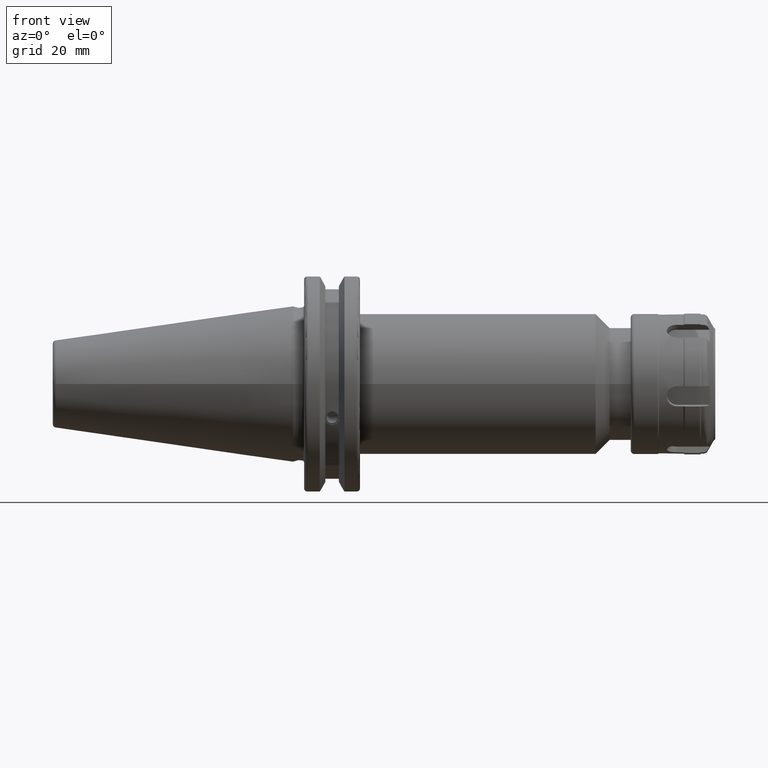
[diagram: clean part render]
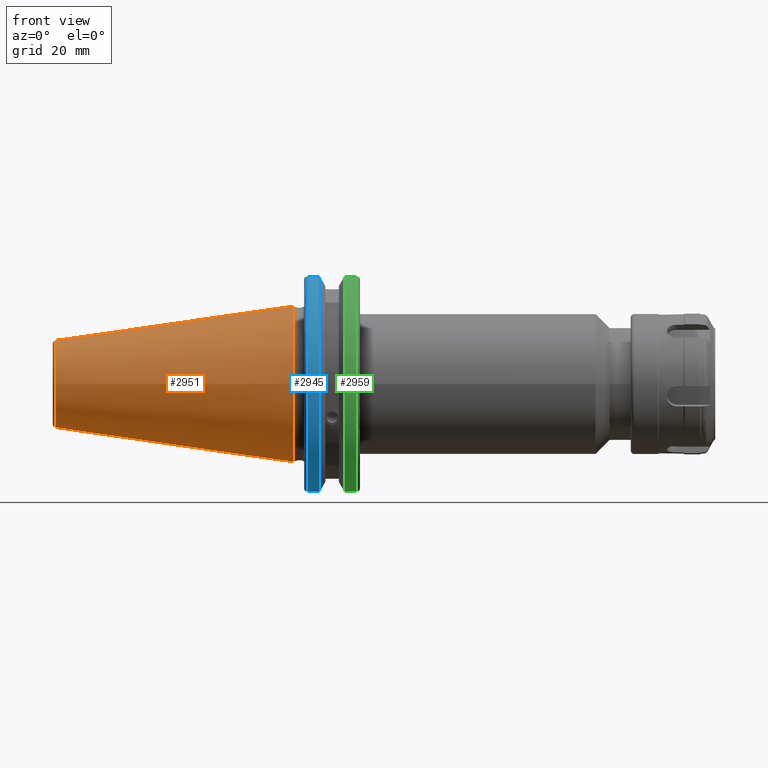
[diagram: same view with three faces highlighted in distinct colors, each labeled with its STEP entity id]
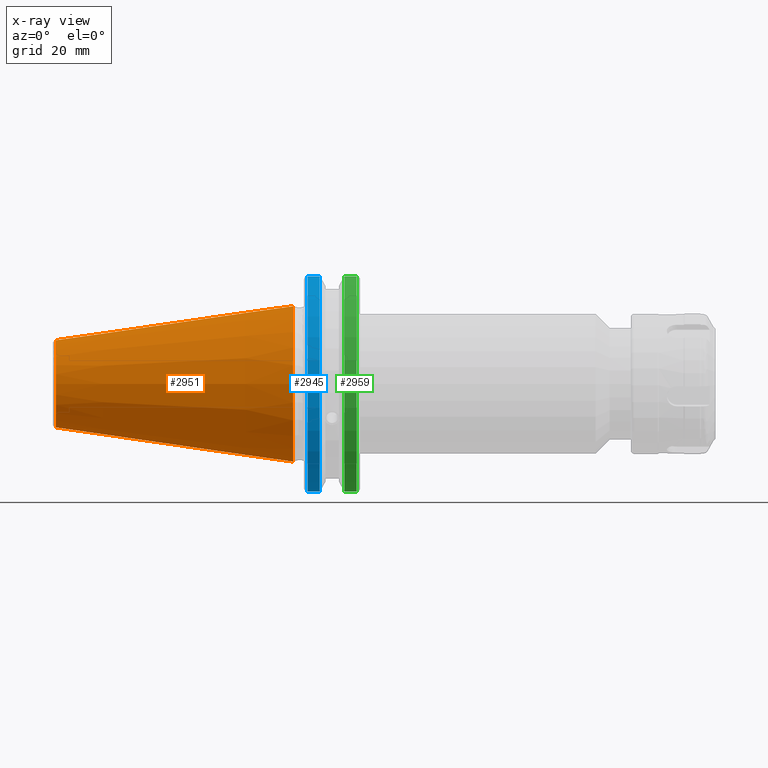
[diagram: x-ray of the same camera — body ghosted, the three highlighted faces saturated]
A machine part, front view with three faces highlighted in distinct colors.
The next image is the same camera in x-ray (body ghosted, the three faces saturated) — at least one of them is partly hidden behind the body in this view.
Their STEP definitions:

[orange] entity #2951 — the highlighted conical surface has half-angle 8.297 deg.
#540=FACE_OUTER_BOUND('',#708,.T.);
#708=EDGE_LOOP('',(#2338,#2339,#2340,#2341,#2342));
#891=LINE('',#5082,#1081);
#1081=VECTOR('',#3841,17.2484375);
#1243=CIRCLE('',#3276,12.3966635780937);
#1244=CIRCLE('',#3277,12.3966635780937);
#1248=CIRCLE('',#3283,22.225);
#1462=VERTEX_POINT('',#5069);
#1463=VERTEX_POINT('',#5070);
#1466=VERTEX_POINT('',#5080);
#1790=EDGE_CURVE('',#1462,#1463,#1243,.T.);
#1791=EDGE_CURVE('',#1463,#1462,#1244,.T.);
#1795=EDGE_CURVE('',#1466,#1466,#1248,.T.);
#1796=EDGE_CURVE('',#1466,#1463,#891,.T.);
#2338=ORIENTED_EDGE('',*,*,#1795,.F.);
#2339=ORIENTED_EDGE('',*,*,#1796,.T.);
#2340=ORIENTED_EDGE('',*,*,#1790,.F.);
#2341=ORIENTED_EDGE('',*,*,#1791,.F.);
#2342=ORIENTED_EDGE('',*,*,#1796,.F.);
#2867=CONICAL_SURFACE('',#3282,17.2484375,0.144812498238939);
#2951=ADVANCED_FACE('',(#540),#2867,.T.);
#3276=AXIS2_PLACEMENT_3D('',#5071,#3825,#3826);
#3277=AXIS2_PLACEMENT_3D('',#5072,#3827,#3828);
#3282=AXIS2_PLACEMENT_3D('',#5079,#3837,#3838);
#3283=AXIS2_PLACEMENT_3D('',#5081,#3839,#3840);
#3825=DIRECTION('center_axis',(-1.,0.,0.));
#3826=DIRECTION('ref_axis',(0.,-1.,3.06161699786838E-17));
#3827=DIRECTION('center_axis',(-1.,0.,0.));
#3828=DIRECTION('ref_axis',(0.,-1.,3.06161699786838E-17));
#3837=DIRECTION('center_axis',(1.,0.,0.));
#3838=DIRECTION('ref_axis',(0.,1.,0.));
#3839=DIRECTION('center_axis',(1.,0.,0.));
#3840=DIRECTION('ref_axis',(0.,0.,-1.));
#3841=DIRECTION('',(-0.989532981063282,0.144306893071729,1.76724974695192E-17));
#5069=CARTESIAN_POINT('',(-67.3943068930717,-1.5181534371019E-15,12.3966635780937));
#5070=CARTESIAN_POINT('',(-67.3943068930718,-12.3966635780937,-1.5181534371019E-15));
#5071=CARTESIAN_POINT('Origin',(-67.3943068930717,0.,-1.89769179637738E-15));
#5072=CARTESIAN_POINT('Origin',(-67.3943068930717,0.,-1.89769179637738E-15));
#5079=CARTESIAN_POINT('Origin',(-34.125,0.,0.));
#5080=CARTESIAN_POINT('',(0.,-22.225,-2.72177751110499E-15));
#5081=CARTESIAN_POINT('Origin',(0.,0.,0.));
#5082=CARTESIAN_POINT('',(-34.125,-17.2484375,-2.11232437746682E-15));

[blue] entity #2945 — the highlighted cylindrical surface (partial cylindrical patch) has radius 31.75 mm, axis along (1, 0, 0).
#458=CYLINDRICAL_SURFACE('',#3269,31.75);
#534=FACE_OUTER_BOUND('',#701,.T.);
#701=EDGE_LOOP('',(#2313,#2314,#2315,#2316));
#888=LINE('',#5023,#1078);
#889=LINE('',#5029,#1079);
#1078=VECTOR('',#3808,10.);
#1079=VECTOR('',#3811,10.);
#1240=CIRCLE('',#3267,31.75);
#1241=CIRCLE('',#3270,31.75);
#1454=VERTEX_POINT('',#5002);
#1455=VERTEX_POINT('',#5011);
#1456=VERTEX_POINT('',#5022);
#1457=VERTEX_POINT('',#5028);
#1777=EDGE_CURVE('',#1454,#1455,#1240,.T.);
#1779=EDGE_CURVE('',#1455,#1456,#888,.T.);
#1781=EDGE_CURVE('',#1457,#1454,#889,.T.);
#1782=EDGE_CURVE('',#1456,#1457,#1241,.T.);
#2313=ORIENTED_EDGE('',*,*,#1777,.F.);
#2314=ORIENTED_EDGE('',*,*,#1781,.F.);
#2315=ORIENTED_EDGE('',*,*,#1782,.F.);
#2316=ORIENTED_EDGE('',*,*,#1779,.F.);
#2945=ADVANCED_FACE('',(#534),#458,.T.);
#3267=AXIS2_PLACEMENT_3D('',#5012,#3804,#3805);
#3269=AXIS2_PLACEMENT_3D('',#5027,#3809,#3810);
#3270=AXIS2_PLACEMENT_3D('',#5030,#3812,#3813);
#3804=DIRECTION('center_axis',(-1.,0.,0.));
#3805=DIRECTION('ref_axis',(0.,-1.,1.60812264967664E-16));
#3808=DIRECTION('',(1.,0.,0.));
#3809=DIRECTION('center_axis',(1.,0.,0.));
#3810=DIRECTION('ref_axis',(0.,-1.,1.22464679914735E-16));
#3811=DIRECTION('',(-1.,0.,0.));
#3812=DIRECTION('center_axis',(1.,0.,0.));
#3813=DIRECTION('ref_axis',(0.,0.,-1.));
#5002=CARTESIAN_POINT('',(4.175,-8.67204822802685,-30.5427254764662));
#5011=CARTESIAN_POINT('',(4.175,-8.67204822802685,30.5427254764662));
#5012=CARTESIAN_POINT('Origin',(4.175,0.,0.));
#5022=CARTESIAN_POINT('',(7.60083323092435,-8.67204822802685,30.5427254764662));
#5023=CARTESIAN_POINT('',(5.38791661546218,-8.67204822802685,30.5427254764662));
#5027=CARTESIAN_POINT('Origin',(5.38791661546218,0.,0.));
#5028=CARTESIAN_POINT('',(7.60083323092435,-8.67204822802685,-30.5427254764662));
#5029=CARTESIAN_POINT('',(5.38791661546218,-8.67204822802685,-30.5427254764662));
#5030=CARTESIAN_POINT('Origin',(7.60083323092435,0.,0.));

[green] entity #2959 — the highlighted cylindrical surface (partial cylindrical patch) has radius 31.75 mm, axis along (1, 0, 0).
#459=CYLINDRICAL_SURFACE('',#3291,31.75);
#548=FACE_OUTER_BOUND('',#716,.T.);
#716=EDGE_LOOP('',(#2379,#2380,#2381,#2382));
#899=LINE('',#5101,#1089);
#900=LINE('',#5103,#1090);
#1089=VECTOR('',#3863,10.);
#1090=VECTOR('',#3866,10.);
#1213=CIRCLE('',#3204,31.75);
#1239=CIRCLE('',#3263,31.75);
#1368=VERTEX_POINT('',#4636);
#1369=VERTEX_POINT('',#4640);
#1445=VERTEX_POINT('',#4946);
#1446=VERTEX_POINT('',#4955);
#1661=EDGE_CURVE('',#1369,#1368,#1213,.T.);
#1761=EDGE_CURVE('',#1445,#1446,#1239,.T.);
#1805=EDGE_CURVE('',#1446,#1368,#899,.T.);
#1806=EDGE_CURVE('',#1369,#1445,#900,.T.);
#2379=ORIENTED_EDGE('',*,*,#1761,.F.);
#2380=ORIENTED_EDGE('',*,*,#1806,.F.);
#2381=ORIENTED_EDGE('',*,*,#1661,.T.);
#2382=ORIENTED_EDGE('',*,*,#1805,.F.);
#2959=ADVANCED_FACE('',(#548),#459,.T.);
#3204=AXIS2_PLACEMENT_3D('',#4641,#3624,#3625);
#3263=AXIS2_PLACEMENT_3D('',#4956,#3787,#3788);
#3291=AXIS2_PLACEMENT_3D('',#5102,#3864,#3865);
#3624=DIRECTION('center_axis',(1.,0.,0.));
#3625=DIRECTION('ref_axis',(0.,0.,-1.));
#3787=DIRECTION('center_axis',(1.,0.,0.));
#3788=DIRECTION('ref_axis',(0.,-1.,1.60812264967664E-16));
#3863=DIRECTION('',(-1.,0.,0.));
#3864=DIRECTION('center_axis',(1.,0.,0.));
#3865=DIRECTION('ref_axis',(0.,-1.,1.22464679914735E-16));
#3866=DIRECTION('',(1.,0.,0.));
#4636=CARTESIAN_POINT('',(14.6531667690756,-8.67204822802685,-30.5427254764662));
#4640=CARTESIAN_POINT('',(14.6531667690756,-8.67204822802685,30.5427254764662));
#4641=CARTESIAN_POINT('Origin',(14.6531667690756,0.,0.));
#4946=CARTESIAN_POINT('',(18.05,-8.67204822802685,30.5427254764662));
#4955=CARTESIAN_POINT('',(18.05,-8.67204822802685,-30.5427254764662));
#4956=CARTESIAN_POINT('Origin',(18.05,0.,0.));
#5101=CARTESIAN_POINT('',(16.8515833845378,-8.67204822802685,-30.5427254764662));
#5102=CARTESIAN_POINT('Origin',(16.8515833845378,0.,0.));
#5103=CARTESIAN_POINT('',(16.8515833845378,-8.67204822802685,30.5427254764662));